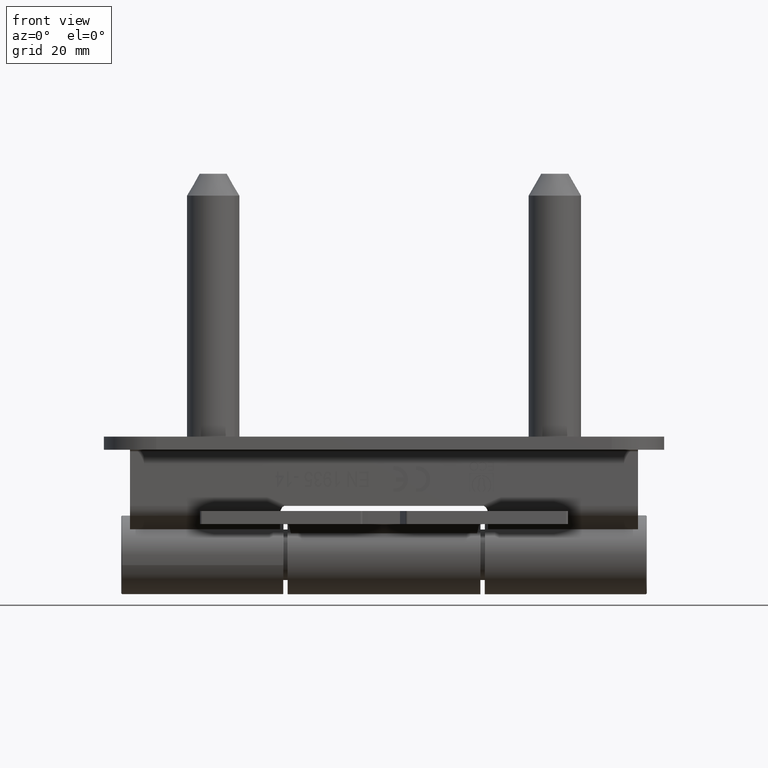
[diagram: clean part render]
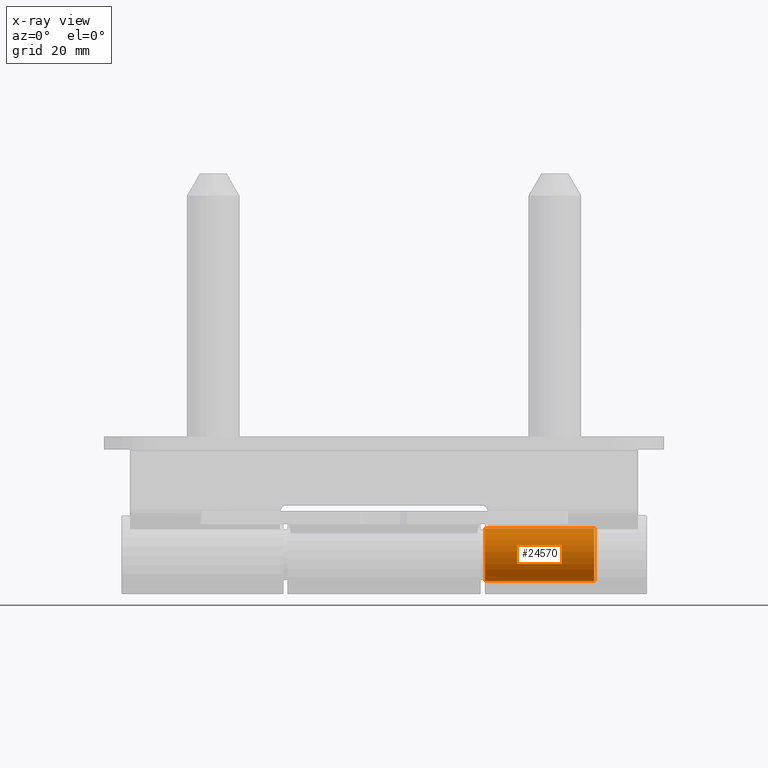
[diagram: x-ray — body ghosted, one internal face saturated and labeled with its STEP entity id]
A machine part, front view, then the same camera in x-ray: the body is ghosted and one INTERNAL B-rep face — a face not visible from any outside direction — is saturated and labeled: STEP entity #24570.
In plain terms, the highlighted cylindrical surface (edge-blend (fillet) strip) has radius 6 mm, axis along (-1, -0, -0).
Its self-contained STEP definition (entity closure, byte-faithful):
#646 = DIRECTION ( 'NONE',  ( 0.000000000000000000, 0.000000000000000000, 1.000000000000000000 ) ) ;
#861 = DIRECTION ( 'NONE',  ( -1.000000000000000000, -1.969277423625670529E-32, -6.286235338479937824E-31 ) ) ;
#1597 = ORIENTED_EDGE ( 'NONE', *, *, #49159, .F. ) ;
#7640 = AXIS2_PLACEMENT_3D ( 'NONE', #49340, #17292, #646 ) ;
#8809 = LINE ( 'NONE', #41120, #41204 ) ;
#10580 = DIRECTION ( 'NONE',  ( 0.000000000000000000, 0.000000000000000000, 1.000000000000000000 ) ) ;
#10832 = AXIS2_PLACEMENT_3D ( 'NONE', #35185, #30677, #10580 ) ;
#15061 = CYLINDRICAL_SURFACE ( 'NONE', #10832, 6.000000000000013323 ) ;
#15309 = FACE_OUTER_BOUND ( 'NONE', #34050, .T. ) ;
#15644 = CARTESIAN_POINT ( 'NONE',  ( 25.50000000000000355, 7.673681983395642422E-15, -6.000000000000026645 ) ) ;
#16321 = CARTESIAN_POINT ( 'NONE',  ( 0.000000000000000000, 0.000000000000000000, 0.000000000000000000 ) ) ;
#17292 = DIRECTION ( 'NONE',  ( -1.000000000000000000, -1.969277423625670256E-32, -6.286235338479937824E-31 ) ) ;
#18590 = CARTESIAN_POINT ( 'NONE',  ( 25.00000000000000355, 7.372574772901430151E-15, 5.999999999999999112 ) ) ;
#19600 = LINE ( 'NONE', #15644, #29523 ) ;
#21145 = EDGE_CURVE ( 'NONE', #48626, #41344, #41054, .T. ) ;
#22219 = CARTESIAN_POINT ( 'NONE',  ( 25.00000000000000355, 8.107362852389844196E-15, -6.000000000000026645 ) ) ;
#23388 = EDGE_CURVE ( 'NONE', #41495, #41344, #8809, .T. ) ;
#24473 = CARTESIAN_POINT ( 'NONE',  ( 2.070759876205155989E-30, 2.958228394578794270E-31, 6.000000000000013323 ) ) ;
#24570 = ADVANCED_FACE ( 'NONE', ( #15309 ), #15061, .F. ) ;
#28260 = DIRECTION ( 'NONE',  ( 3.451266460341919204E-31, 4.930380657631312836E-32, 1.000000000000000000 ) ) ;
#28766 = CIRCLE ( 'NONE', #7640, 6.000000000000013323 ) ;
#29523 = VECTOR ( 'NONE', #31803, 1000.000000000000000 ) ;
#30677 = DIRECTION ( 'NONE',  ( -1.000000000000000000, -1.969277423625670256E-32, -6.286235338479937824E-31 ) ) ;
#31094 = ORIENTED_EDGE ( 'NONE', *, *, #47746, .T. ) ;
#31358 = ORIENTED_EDGE ( 'NONE', *, *, #21145, .T. ) ;
#31803 = DIRECTION ( 'NONE',  ( -1.000000000000000000, -1.969277423625670529E-32, -6.286235338479937824E-31 ) ) ;
#33446 = AXIS2_PLACEMENT_3D ( 'NONE', #16321, #39470, #28260 ) ;
#34050 = EDGE_LOOP ( 'NONE', ( #1597, #31094, #31358, #44904 ) ) ;
#34711 = CARTESIAN_POINT ( 'NONE',  ( 3.771741203087963395E-30, 7.673681983395615601E-15, -6.000000000000000000 ) ) ;
#35185 = CARTESIAN_POINT ( 'NONE',  ( 25.50000000000000355, 6.938893903907228378E-15, -1.387778780781445676E-14 ) ) ;
#38946 = VERTEX_POINT ( 'NONE', #22219 ) ;
#39470 = DIRECTION ( 'NONE',  ( -1.000000000000000000, -1.969277423625670256E-32, -6.286235338479937824E-31 ) ) ;
#41054 = CIRCLE ( 'NONE', #33446, 6.000000000000013323 ) ;
#41120 = CARTESIAN_POINT ( 'NONE',  ( 25.50000000000000355, 6.938893903907228378E-15, 5.999999999999999112 ) ) ;
#41204 = VECTOR ( 'NONE', #861, 1000.000000000000000 ) ;
#41344 = VERTEX_POINT ( 'NONE', #24473 ) ;
#41495 = VERTEX_POINT ( 'NONE', #18590 ) ;
#44904 = ORIENTED_EDGE ( 'NONE', *, *, #23388, .F. ) ;
#47746 = EDGE_CURVE ( 'NONE', #38946, #48626, #19600, .T. ) ;
#48626 = VERTEX_POINT ( 'NONE', #34711 ) ;
#49159 = EDGE_CURVE ( 'NONE', #38946, #41495, #28766, .T. ) ;
#49340 = CARTESIAN_POINT ( 'NONE',  ( 25.00000000000000355, 7.372574772901430151E-15, -1.387778780781445676E-14 ) ) ;